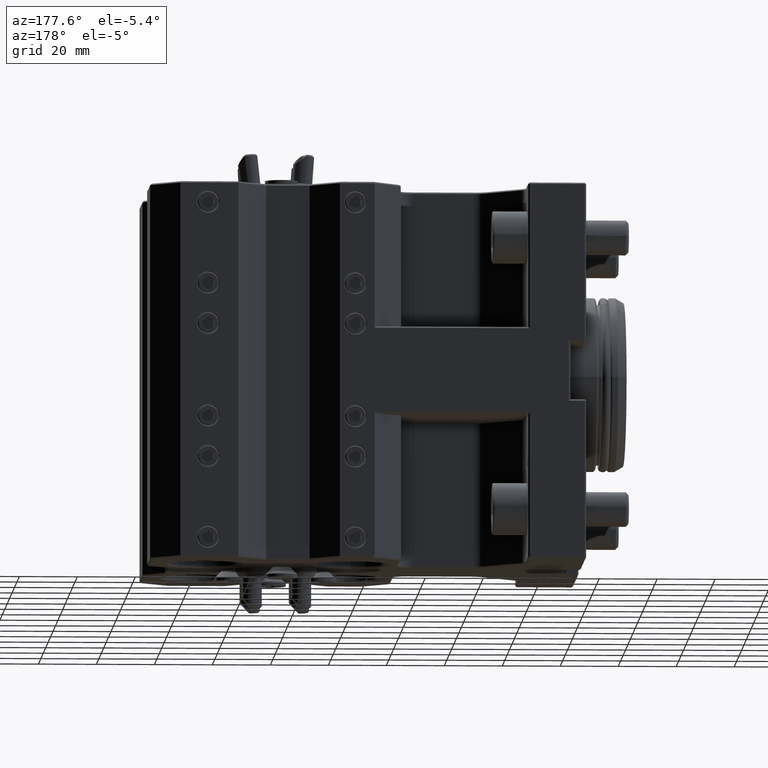
[diagram: clean part render]
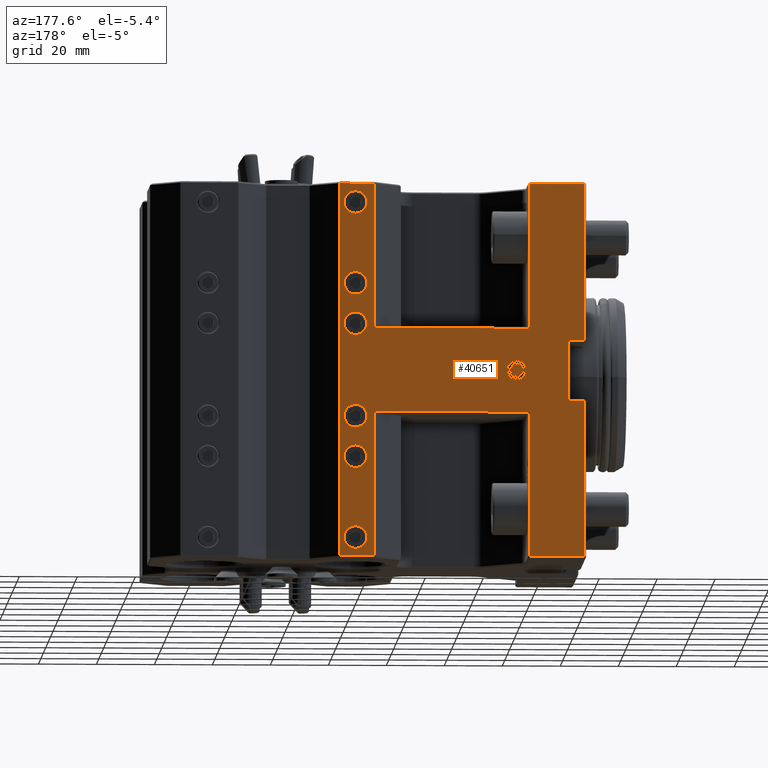
[diagram: same view with one face highlighted and labeled with its STEP entity id]
A machine part, auxiliary view. The second image highlights one B-rep face of the part: STEP entity #40651.
In plain terms, the highlighted planar face has unit normal (-0, -1, 0).
Its self-contained STEP definition (entity closure, byte-faithful):
#284 = ORIENTED_EDGE ( 'NONE', *, *, #25982, .T. ) ;
#446 = FACE_OUTER_BOUND ( 'NONE', #17327, .T. ) ;
#509 = CARTESIAN_POINT ( 'NONE',  ( 73.00000000000018474, 53.99999999999874234, 14.49999999999999822 ) ) ;
#797 = EDGE_CURVE ( 'NONE', #29375, #34078, #37699, .T. ) ;
#960 = AXIS2_PLACEMENT_3D ( 'NONE', #35754, #21269, #21039 ) ;
#991 = EDGE_CURVE ( 'NONE', #28762, #44327, #33349, .T. ) ;
#1001 = CARTESIAN_POINT ( 'NONE',  ( 79.60000000000019327, 53.99999999999872102, 30.00000000000000000 ) ) ;
#1055 = VERTEX_POINT ( 'NONE', #32894 ) ;
#1282 = CARTESIAN_POINT ( 'NONE',  ( 0.5000000000002164935, 53.99999999999899813, 65.00000000000000000 ) ) ;
#1312 = DIRECTION ( 'NONE',  ( -3.491481338843133355E-15, -1.000000000000000000, 0.000000000000000000 ) ) ;
#1580 = DIRECTION ( 'NONE',  ( 1.000000000000000000, -3.246579201058171843E-15, -1.318922190902329970E-31 ) ) ;
#1754 = VECTOR ( 'NONE', #8525, 1000.000000000000000 ) ;
#1781 = VERTEX_POINT ( 'NONE', #10983 ) ;
#1906 = DIRECTION ( 'NONE',  ( 1.000000000000000000, -3.246579201058171843E-15, 0.000000000000000000 ) ) ;
#1959 = ORIENTED_EDGE ( 'NONE', *, *, #5125, .T. ) ;
#2007 = CARTESIAN_POINT ( 'NONE',  ( 73.00000000000018474, 53.99999999999874234, 14.49999999999999822 ) ) ;
#2275 = AXIS2_PLACEMENT_3D ( 'NONE', #42521, #1312, #16735 ) ;
#2354 = CARTESIAN_POINT ( 'NONE',  ( 79.60000000000019327, 53.99999999999872102, -58.00000000000000000 ) ) ;
#2575 = LINE ( 'NONE', #2822, #44779 ) ;
#2822 = CARTESIAN_POINT ( 'NONE',  ( 85.00000000000019895, 53.99999999999869971, -64.49999999999997158 ) ) ;
#2834 = CARTESIAN_POINT ( 'NONE',  ( 79.60000000000019327, 53.99999999999872102, -26.10000000000000497 ) ) ;
#3158 = CARTESIAN_POINT ( 'NONE',  ( 19.50000000000018829, 53.99999999999893419, 65.00000000000000000 ) ) ;
#3431 = CARTESIAN_POINT ( 'NONE',  ( 79.60000000000019327, 53.99999999999872102, -12.09999999999999964 ) ) ;
#3544 = DIRECTION ( 'NONE',  ( -3.491481338843133355E-15, -1.000000000000000000, 0.000000000000000000 ) ) ;
#4104 = DIRECTION ( 'NONE',  ( 1.000000000000000000, -3.246579201058171843E-15, 0.000000000000000000 ) ) ;
#4961 = ORIENTED_EDGE ( 'NONE', *, *, #36175, .F. ) ;
#4992 = CARTESIAN_POINT ( 'NONE',  ( 73.00000000000018474, 53.99999999999874234, 15.00000000000000000 ) ) ;
#5125 = EDGE_CURVE ( 'NONE', #40533, #14073, #42005, .T. ) ;
#6208 = VECTOR ( 'NONE', #39525, 1000.000000000000000 ) ;
#6247 = CARTESIAN_POINT ( 'NONE',  ( 79.60000000000019327, 53.99999999999872102, -19.90000000000000213 ) ) ;
#6557 = EDGE_LOOP ( 'NONE', ( #14599, #40705 ) ) ;
#6608 = DIRECTION ( 'NONE',  ( -3.491481338843133355E-15, -1.000000000000000000, 0.000000000000000000 ) ) ;
#6662 = VERTEX_POINT ( 'NONE', #11052 ) ;
#7506 = VECTOR ( 'NONE', #38840, 1000.000000000000000 ) ;
#7527 = ORIENTED_EDGE ( 'NONE', *, *, #991, .T. ) ;
#7942 = FACE_BOUND ( 'NONE', #37776, .T. ) ;
#8432 = CARTESIAN_POINT ( 'NONE',  ( 79.60000000000019327, 53.99999999999872102, 26.09999999999999787 ) ) ;
#8468 = DIRECTION ( 'NONE',  ( 1.000000000000000000, -3.246579201058171843E-15, 0.000000000000000000 ) ) ;
#8497 = CIRCLE ( 'NONE', #35468, 3.899999999999917311 ) ;
#8525 = DIRECTION ( 'NONE',  ( 0.000000000000000000, -0.000000000000000000, -1.000000000000000000 ) ) ;
#8982 = DIRECTION ( 'NONE',  ( 0.000000000000000000, 0.000000000000000000, 1.000000000000000000 ) ) ;
#9116 = DIRECTION ( 'NONE',  ( 1.000000000000000000, -3.558407130208923398E-15, 0.000000000000000000 ) ) ;
#9351 = CARTESIAN_POINT ( 'NONE',  ( 73.00000000000018474, 53.99999999999874234, -14.49999999999999822 ) ) ;
#9576 = AXIS2_PLACEMENT_3D ( 'NONE', #44571, #26993, #4104 ) ;
#9938 = EDGE_CURVE ( 'NONE', #6662, #1781, #29466, .T. ) ;
#10052 = EDGE_LOOP ( 'NONE', ( #32910, #7527 ) ) ;
#10176 = CARTESIAN_POINT ( 'NONE',  ( 19.50000000000018829, 53.99999999999893419, 65.00000000000000000 ) ) ;
#10440 = CARTESIAN_POINT ( 'NONE',  ( 85.00000000000019895, 53.99999999999869971, -64.50000000000002842 ) ) ;
#10662 = EDGE_CURVE ( 'NONE', #43886, #6662, #28365, .T. ) ;
#10694 = CARTESIAN_POINT ( 'NONE',  ( 73.00000000000018474, 53.99999999999874234, 64.50000000000000000 ) ) ;
#10914 = VECTOR ( 'NONE', #25164, 1000.000000000000000 ) ;
#10983 = CARTESIAN_POINT ( 'NONE',  ( 19.50000000000018829, 53.99999999999893419, -64.49999999999997158 ) ) ;
#11052 = CARTESIAN_POINT ( 'NONE',  ( 19.50000000000018829, 53.99999999999893419, -14.49999999999999822 ) ) ;
#11224 = CARTESIAN_POINT ( 'NONE',  ( 85.00000000000019895, 53.99999999999869971, 65.00000000000000000 ) ) ;
#11326 = DIRECTION ( 'NONE',  ( -1.000000000000000000, 3.246579201058171843E-15, 0.000000000000000000 ) ) ;
#11736 = CIRCLE ( 'NONE', #20901, 3.899999999999903544 ) ;
#11743 = EDGE_CURVE ( 'NONE', #14073, #44274, #18095, .T. ) ;
#12087 = VERTEX_POINT ( 'NONE', #46933 ) ;
#12475 = VERTEX_POINT ( 'NONE', #2007 ) ;
#12506 = CARTESIAN_POINT ( 'NONE',  ( 73.00000000000018474, 53.99999999999874234, -15.00000000000000000 ) ) ;
#12742 = LINE ( 'NONE', #12506, #30416 ) ;
#12854 = CARTESIAN_POINT ( 'NONE',  ( 6.000000000000188294, 53.99999999999897682, 9.999999999999994671 ) ) ;
#12923 = LINE ( 'NONE', #30779, #30648 ) ;
#12999 = CARTESIAN_POINT ( 'NONE',  ( 0.5000000000002164935, 53.99999999999899813, 65.00000000000000000 ) ) ;
#13193 = ORIENTED_EDGE ( 'NONE', *, *, #15007, .T. ) ;
#14073 = VERTEX_POINT ( 'NONE', #24582 ) ;
#14121 = VECTOR ( 'NONE', #29001, 1000.000000000000000 ) ;
#14137 = ORIENTED_EDGE ( 'NONE', *, *, #43982, .T. ) ;
#14168 = LINE ( 'NONE', #20925, #35401 ) ;
#14324 = VERTEX_POINT ( 'NONE', #8432 ) ;
#14341 = DIRECTION ( 'NONE',  ( -1.000000000000000000, 3.246579201058171843E-15, 0.000000000000000000 ) ) ;
#14433 = AXIS2_PLACEMENT_3D ( 'NONE', #21467, #29434, #36892 ) ;
#14487 = ORIENTED_EDGE ( 'NONE', *, *, #41169, .T. ) ;
#14599 = ORIENTED_EDGE ( 'NONE', *, *, #797, .T. ) ;
#14736 = EDGE_CURVE ( 'NONE', #33603, #30098, #29921, .T. ) ;
#14801 = ORIENTED_EDGE ( 'NONE', *, *, #38401, .T. ) ;
#14842 = VERTEX_POINT ( 'NONE', #37608 ) ;
#15007 = EDGE_CURVE ( 'NONE', #23433, #1055, #17107, .T. ) ;
#15251 = VECTOR ( 'NONE', #19937, 1000.000000000000000 ) ;
#15416 = CIRCLE ( 'NONE', #23889, 3.899999999999903544 ) ;
#15526 = CARTESIAN_POINT ( 'NONE',  ( 79.60000000000019327, 53.99999999999872102, -61.90000000000000568 ) ) ;
#16306 = LINE ( 'NONE', #4992, #15251 ) ;
#16361 = EDGE_CURVE ( 'NONE', #25422, #21566, #8497, .T. ) ;
#16735 = DIRECTION ( 'NONE',  ( 1.000000000000000000, -3.558407130208923398E-15, 0.000000000000000000 ) ) ;
#16809 = VERTEX_POINT ( 'NONE', #24062 ) ;
#16894 = AXIS2_PLACEMENT_3D ( 'NONE', #23130, #30605, #9116 ) ;
#16995 = AXIS2_PLACEMENT_3D ( 'NONE', #32949, #18010, #32713 ) ;
#17083 = DIRECTION ( 'NONE',  ( 1.000000000000000000, -3.558407130208923398E-15, 0.000000000000000000 ) ) ;
#17107 = LINE ( 'NONE', #34969, #31498 ) ;
#17164 = DIRECTION ( 'NONE',  ( 1.000000000000000000, -3.558407130208923398E-15, 0.000000000000000000 ) ) ;
#17327 = EDGE_LOOP ( 'NONE', ( #14487, #13193, #14801, #26246, #4961, #40645, #19687, #284, #44230, #24237, #1959, #31443, #19253, #31622, #18492, #44492 ) ) ;
#17664 = DIRECTION ( 'NONE',  ( -3.491481338843133355E-15, -1.000000000000000000, 0.000000000000000000 ) ) ;
#17798 = VERTEX_POINT ( 'NONE', #15526 ) ;
#17944 = EDGE_LOOP ( 'NONE', ( #14137, #29937 ) ) ;
#17946 = CARTESIAN_POINT ( 'NONE',  ( 79.60000000000019327, 53.99999999999872102, 57.99999999999999289 ) ) ;
#18010 = DIRECTION ( 'NONE',  ( -3.491481338843133355E-15, -1.000000000000000000, 0.000000000000000000 ) ) ;
#18095 = LINE ( 'NONE', #21941, #31760 ) ;
#18380 = CARTESIAN_POINT ( 'NONE',  ( 79.60000000000019327, 53.99999999999872102, -16.00000000000000000 ) ) ;
#18492 = ORIENTED_EDGE ( 'NONE', *, *, #14736, .T. ) ;
#19253 = ORIENTED_EDGE ( 'NONE', *, *, #41626, .T. ) ;
#19254 = CIRCLE ( 'NONE', #16894, 3.899999999999903544 ) ;
#19365 = DIRECTION ( 'NONE',  ( -3.491481338843133355E-15, -1.000000000000000000, 0.000000000000000000 ) ) ;
#19687 = ORIENTED_EDGE ( 'NONE', *, *, #9938, .T. ) ;
#19937 = DIRECTION ( 'NONE',  ( 0.000000000000000000, 0.000000000000000000, 1.000000000000000000 ) ) ;
#20273 = DIRECTION ( 'NONE',  ( -3.491481338843133355E-15, -1.000000000000000000, 0.000000000000000000 ) ) ;
#20465 = EDGE_CURVE ( 'NONE', #34078, #29375, #44329, .T. ) ;
#20901 = AXIS2_PLACEMENT_3D ( 'NONE', #1001, #19365, #27967 ) ;
#20925 = CARTESIAN_POINT ( 'NONE',  ( 20.00000000000018829, 53.99999999999893419, 64.50000000000000000 ) ) ;
#21039 = DIRECTION ( 'NONE',  ( 1.000000000000000000, -3.558407130208910776E-15, 0.000000000000000000 ) ) ;
#21269 = DIRECTION ( 'NONE',  ( -3.491481338843133355E-15, -1.000000000000000000, 0.000000000000000000 ) ) ;
#21467 = CARTESIAN_POINT ( 'NONE',  ( 79.60000000000019327, 53.99999999999872102, -16.00000000000000000 ) ) ;
#21566 = VERTEX_POINT ( 'NONE', #41143 ) ;
#21783 = CIRCLE ( 'NONE', #960, 3.899999999999917311 ) ;
#21871 = CARTESIAN_POINT ( 'NONE',  ( 79.60000000000019327, 53.99999999999872102, 16.00000000000000000 ) ) ;
#21894 = ORIENTED_EDGE ( 'NONE', *, *, #36576, .T. ) ;
#21941 = CARTESIAN_POINT ( 'NONE',  ( 85.00000000000019895, 53.99999999999869971, 10.49999999999999467 ) ) ;
#22968 = EDGE_CURVE ( 'NONE', #14842, #24098, #46005, .T. ) ;
#22992 = VERTEX_POINT ( 'NONE', #6247 ) ;
#23130 = CARTESIAN_POINT ( 'NONE',  ( 79.60000000000019327, 53.99999999999872102, -58.00000000000000000 ) ) ;
#23160 = ORIENTED_EDGE ( 'NONE', *, *, #41767, .T. ) ;
#23433 = VERTEX_POINT ( 'NONE', #10694 ) ;
#23688 = AXIS2_PLACEMENT_3D ( 'NONE', #17946, #6608, #32416 ) ;
#23889 = AXIS2_PLACEMENT_3D ( 'NONE', #2354, #24084, #17083 ) ;
#24062 = CARTESIAN_POINT ( 'NONE',  ( 73.00000000000018474, 53.99999999999874234, -64.50000000000002842 ) ) ;
#24084 = DIRECTION ( 'NONE',  ( -3.491481338843133355E-15, -1.000000000000000000, 0.000000000000000000 ) ) ;
#24098 = VERTEX_POINT ( 'NONE', #33549 ) ;
#24225 = VERTEX_POINT ( 'NONE', #32532 ) ;
#24237 = ORIENTED_EDGE ( 'NONE', *, *, #41174, .T. ) ;
#24565 = ORIENTED_EDGE ( 'NONE', *, *, #16361, .T. ) ;
#24582 = CARTESIAN_POINT ( 'NONE',  ( 6.000000000000188294, 53.99999999999897682, 10.49999999999999467 ) ) ;
#25105 = EDGE_CURVE ( 'NONE', #44327, #28762, #25481, .T. ) ;
#25164 = DIRECTION ( 'NONE',  ( -1.000000000000000000, 3.246579201058171843E-15, 0.000000000000000000 ) ) ;
#25422 = VERTEX_POINT ( 'NONE', #36029 ) ;
#25481 = CIRCLE ( 'NONE', #16995, 3.899999999999903544 ) ;
#25982 = EDGE_CURVE ( 'NONE', #1781, #14842, #2575, .T. ) ;
#25985 = DIRECTION ( 'NONE',  ( 1.000000000000000000, -3.558407130208910776E-15, 0.000000000000000000 ) ) ;
#26000 = VECTOR ( 'NONE', #8982, 1000.000000000000000 ) ;
#26246 = ORIENTED_EDGE ( 'NONE', *, *, #46897, .T. ) ;
#26834 = EDGE_CURVE ( 'NONE', #21566, #25422, #21783, .T. ) ;
#26993 = DIRECTION ( 'NONE',  ( -3.246579201058171843E-15, -1.000000000000000000, 0.000000000000000000 ) ) ;
#27115 = LINE ( 'NONE', #1282, #7506 ) ;
#27460 = DIRECTION ( 'NONE',  ( 0.000000000000000000, -0.000000000000000000, -1.000000000000000000 ) ) ;
#27967 = DIRECTION ( 'NONE',  ( 1.000000000000000000, -3.558407130208923398E-15, 0.000000000000000000 ) ) ;
#28154 = CIRCLE ( 'NONE', #42743, 3.899999999999903544 ) ;
#28180 = AXIS2_PLACEMENT_3D ( 'NONE', #31871, #39337, #17164 ) ;
#28365 = LINE ( 'NONE', #31969, #44222 ) ;
#28383 = CARTESIAN_POINT ( 'NONE',  ( 79.60000000000019327, 53.99999999999872102, -33.89999999999999858 ) ) ;
#28413 = DIRECTION ( 'NONE',  ( 1.000000000000000000, -3.246579201058171843E-15, 0.000000000000000000 ) ) ;
#28762 = VERTEX_POINT ( 'NONE', #30177 ) ;
#29001 = DIRECTION ( 'NONE',  ( 0.000000000000000000, -0.000000000000000000, -1.000000000000000000 ) ) ;
#29307 = EDGE_CURVE ( 'NONE', #37359, #33603, #14168, .T. ) ;
#29375 = VERTEX_POINT ( 'NONE', #2834 ) ;
#29434 = DIRECTION ( 'NONE',  ( -3.491481338843133355E-15, -1.000000000000000000, 0.000000000000000000 ) ) ;
#29466 = LINE ( 'NONE', #10176, #14121 ) ;
#29758 = VERTEX_POINT ( 'NONE', #3431 ) ;
#29809 = EDGE_CURVE ( 'NONE', #22992, #29758, #45380, .T. ) ;
#29896 = FACE_BOUND ( 'NONE', #17944, .T. ) ;
#29921 = LINE ( 'NONE', #3158, #40687 ) ;
#29937 = ORIENTED_EDGE ( 'NONE', *, *, #43904, .T. ) ;
#30098 = VERTEX_POINT ( 'NONE', #46532 ) ;
#30177 = CARTESIAN_POINT ( 'NONE',  ( 79.60000000000019327, 53.99999999999872102, 54.09999999999999432 ) ) ;
#30416 = VECTOR ( 'NONE', #27460, 1000.000000000000000 ) ;
#30435 = LINE ( 'NONE', #509, #37872 ) ;
#30559 = CARTESIAN_POINT ( 'NONE',  ( 79.60000000000019327, 53.99999999999872102, 61.90000000000001279 ) ) ;
#30605 = DIRECTION ( 'NONE',  ( -3.491481338843133355E-15, -1.000000000000000000, 0.000000000000000000 ) ) ;
#30648 = VECTOR ( 'NONE', #1580, 1000.000000000000000 ) ;
#30742 = ORIENTED_EDGE ( 'NONE', *, *, #26834, .T. ) ;
#30779 = CARTESIAN_POINT ( 'NONE',  ( 85.00000000000019895, 53.99999999999869971, -10.50000000000000178 ) ) ;
#31053 = EDGE_LOOP ( 'NONE', ( #23160, #33233 ) ) ;
#31443 = ORIENTED_EDGE ( 'NONE', *, *, #11743, .T. ) ;
#31498 = VECTOR ( 'NONE', #1906, 1000.000000000000000 ) ;
#31622 = ORIENTED_EDGE ( 'NONE', *, *, #29307, .T. ) ;
#31760 = VECTOR ( 'NONE', #11326, 1000.000000000000000 ) ;
#31789 = CARTESIAN_POINT ( 'NONE',  ( 79.60000000000019327, 53.99999999999872102, -54.10000000000000142 ) ) ;
#31871 = CARTESIAN_POINT ( 'NONE',  ( 79.60000000000019327, 53.99999999999872102, -30.00000000000000000 ) ) ;
#31969 = CARTESIAN_POINT ( 'NONE',  ( 85.00000000000019895, 53.99999999999869971, -14.49999999999999822 ) ) ;
#32416 = DIRECTION ( 'NONE',  ( 1.000000000000000000, -3.558407130208923398E-15, 0.000000000000000000 ) ) ;
#32532 = CARTESIAN_POINT ( 'NONE',  ( 79.60000000000019327, 53.99999999999872102, 33.89999999999999858 ) ) ;
#32713 = DIRECTION ( 'NONE',  ( 1.000000000000000000, -3.558407130208923398E-15, 0.000000000000000000 ) ) ;
#32894 = CARTESIAN_POINT ( 'NONE',  ( 85.00000000000019895, 53.99999999999869971, 64.50000000000000000 ) ) ;
#32910 = ORIENTED_EDGE ( 'NONE', *, *, #25105, .T. ) ;
#32949 = CARTESIAN_POINT ( 'NONE',  ( 79.60000000000019327, 53.99999999999872102, 57.99999999999999289 ) ) ;
#33233 = ORIENTED_EDGE ( 'NONE', *, *, #29809, .T. ) ;
#33349 = CIRCLE ( 'NONE', #23688, 3.899999999999903544 ) ;
#33523 = FACE_BOUND ( 'NONE', #10052, .T. ) ;
#33549 = CARTESIAN_POINT ( 'NONE',  ( 0.5000000000002164935, 53.99999999999899813, -10.50000000000000178 ) ) ;
#33603 = VERTEX_POINT ( 'NONE', #35663 ) ;
#33745 = PLANE ( 'NONE',  #9576 ) ;
#33794 = EDGE_LOOP ( 'NONE', ( #30742, #24565 ) ) ;
#34078 = VERTEX_POINT ( 'NONE', #28383 ) ;
#34226 = FACE_BOUND ( 'NONE', #31053, .T. ) ;
#34969 = CARTESIAN_POINT ( 'NONE',  ( 85.00000000000019895, 53.99999999999869971, 64.50000000000000000 ) ) ;
#34987 = DIRECTION ( 'NONE',  ( 1.000000000000000000, -3.558407130208923398E-15, 0.000000000000000000 ) ) ;
#35144 = DIRECTION ( 'NONE',  ( -1.000000000000000000, 3.246579201058171843E-15, 0.000000000000000000 ) ) ;
#35401 = VECTOR ( 'NONE', #28413, 1000.000000000000000 ) ;
#35468 = AXIS2_PLACEMENT_3D ( 'NONE', #21871, #3544, #25985 ) ;
#35663 = CARTESIAN_POINT ( 'NONE',  ( 19.50000000000018829, 53.99999999999893419, 64.50000000000000000 ) ) ;
#35754 = CARTESIAN_POINT ( 'NONE',  ( 79.60000000000019327, 53.99999999999872102, 16.00000000000000000 ) ) ;
#36029 = CARTESIAN_POINT ( 'NONE',  ( 79.60000000000019327, 53.99999999999872102, 12.09999999999999964 ) ) ;
#36175 = EDGE_CURVE ( 'NONE', #43886, #16809, #12742, .T. ) ;
#36576 = EDGE_CURVE ( 'NONE', #14324, #24225, #28154, .T. ) ;
#36892 = DIRECTION ( 'NONE',  ( 1.000000000000000000, -3.558407130208923398E-15, 0.000000000000000000 ) ) ;
#36916 = DIRECTION ( 'NONE',  ( 0.000000000000000000, -0.000000000000000000, -1.000000000000000000 ) ) ;
#37124 = FACE_BOUND ( 'NONE', #33794, .T. ) ;
#37359 = VERTEX_POINT ( 'NONE', #42299 ) ;
#37463 = LINE ( 'NONE', #11224, #1754 ) ;
#37608 = CARTESIAN_POINT ( 'NONE',  ( 0.5000000000002164935, 53.99999999999899813, -64.49999999999997158 ) ) ;
#37699 = CIRCLE ( 'NONE', #2275, 3.899999999999903544 ) ;
#37776 = EDGE_LOOP ( 'NONE', ( #46503, #21894 ) ) ;
#37872 = VECTOR ( 'NONE', #8468, 1000.000000000000000 ) ;
#38401 = EDGE_CURVE ( 'NONE', #1055, #12087, #37463, .T. ) ;
#38758 = EDGE_CURVE ( 'NONE', #30098, #12475, #30435, .T. ) ;
#38840 = DIRECTION ( 'NONE',  ( 0.000000000000000000, 0.000000000000000000, 1.000000000000000000 ) ) ;
#39075 = CARTESIAN_POINT ( 'NONE',  ( 6.000000000000188294, 53.99999999999897682, -10.50000000000000178 ) ) ;
#39337 = DIRECTION ( 'NONE',  ( -3.491481338843133355E-15, -1.000000000000000000, 0.000000000000000000 ) ) ;
#39525 = DIRECTION ( 'NONE',  ( 0.000000000000000000, 0.000000000000000000, 1.000000000000000000 ) ) ;
#40533 = VERTEX_POINT ( 'NONE', #39075 ) ;
#40645 = ORIENTED_EDGE ( 'NONE', *, *, #10662, .T. ) ;
#40651 = ADVANCED_FACE ( 'NONE', ( #29896, #41189, #34226, #37124, #7942, #33523, #446 ), #33745, .F. ) ;
#40687 = VECTOR ( 'NONE', #36916, 1000.000000000000000 ) ;
#40705 = ORIENTED_EDGE ( 'NONE', *, *, #20465, .T. ) ;
#41143 = CARTESIAN_POINT ( 'NONE',  ( 79.60000000000019327, 53.99999999999872102, 19.90000000000000213 ) ) ;
#41169 = EDGE_CURVE ( 'NONE', #12475, #23433, #16306, .T. ) ;
#41174 = EDGE_CURVE ( 'NONE', #24098, #40533, #12923, .T. ) ;
#41189 = FACE_BOUND ( 'NONE', #6557, .T. ) ;
#41579 = AXIS2_PLACEMENT_3D ( 'NONE', #18380, #17664, #43681 ) ;
#41626 = EDGE_CURVE ( 'NONE', #44274, #37359, #27115, .T. ) ;
#41767 = EDGE_CURVE ( 'NONE', #29758, #22992, #42904, .T. ) ;
#42005 = LINE ( 'NONE', #12854, #26000 ) ;
#42081 = CARTESIAN_POINT ( 'NONE',  ( 0.5000000000002164935, 53.99999999999899813, 10.49999999999999467 ) ) ;
#42299 = CARTESIAN_POINT ( 'NONE',  ( 0.5000000000002164935, 53.99999999999899813, 64.50000000000000000 ) ) ;
#42521 = CARTESIAN_POINT ( 'NONE',  ( 79.60000000000019327, 53.99999999999872102, -30.00000000000000000 ) ) ;
#42743 = AXIS2_PLACEMENT_3D ( 'NONE', #43138, #20273, #34987 ) ;
#42904 = CIRCLE ( 'NONE', #14433, 3.899999999999903544 ) ;
#43138 = CARTESIAN_POINT ( 'NONE',  ( 79.60000000000019327, 53.99999999999872102, 30.00000000000000000 ) ) ;
#43454 = LINE ( 'NONE', #10440, #10914 ) ;
#43681 = DIRECTION ( 'NONE',  ( 1.000000000000000000, -3.558407130208923398E-15, 0.000000000000000000 ) ) ;
#43886 = VERTEX_POINT ( 'NONE', #9351 ) ;
#43904 = EDGE_CURVE ( 'NONE', #17798, #43926, #19254, .T. ) ;
#43926 = VERTEX_POINT ( 'NONE', #31789 ) ;
#43982 = EDGE_CURVE ( 'NONE', #43926, #17798, #15416, .T. ) ;
#44222 = VECTOR ( 'NONE', #14341, 1000.000000000000000 ) ;
#44230 = ORIENTED_EDGE ( 'NONE', *, *, #22968, .T. ) ;
#44274 = VERTEX_POINT ( 'NONE', #42081 ) ;
#44327 = VERTEX_POINT ( 'NONE', #30559 ) ;
#44329 = CIRCLE ( 'NONE', #28180, 3.899999999999903544 ) ;
#44492 = ORIENTED_EDGE ( 'NONE', *, *, #38758, .T. ) ;
#44571 = CARTESIAN_POINT ( 'NONE',  ( 85.00000000000019895, 53.99999999999869971, 65.00000000000000000 ) ) ;
#44779 = VECTOR ( 'NONE', #35144, 1000.000000000000000 ) ;
#45380 = CIRCLE ( 'NONE', #41579, 3.899999999999903544 ) ;
#46005 = LINE ( 'NONE', #12999, #6208 ) ;
#46165 = EDGE_CURVE ( 'NONE', #24225, #14324, #11736, .T. ) ;
#46503 = ORIENTED_EDGE ( 'NONE', *, *, #46165, .T. ) ;
#46532 = CARTESIAN_POINT ( 'NONE',  ( 19.50000000000018829, 53.99999999999893419, 14.49999999999999822 ) ) ;
#46897 = EDGE_CURVE ( 'NONE', #12087, #16809, #43454, .T. ) ;
#46933 = CARTESIAN_POINT ( 'NONE',  ( 85.00000000000019895, 53.99999999999869971, -64.50000000000002842 ) ) ;